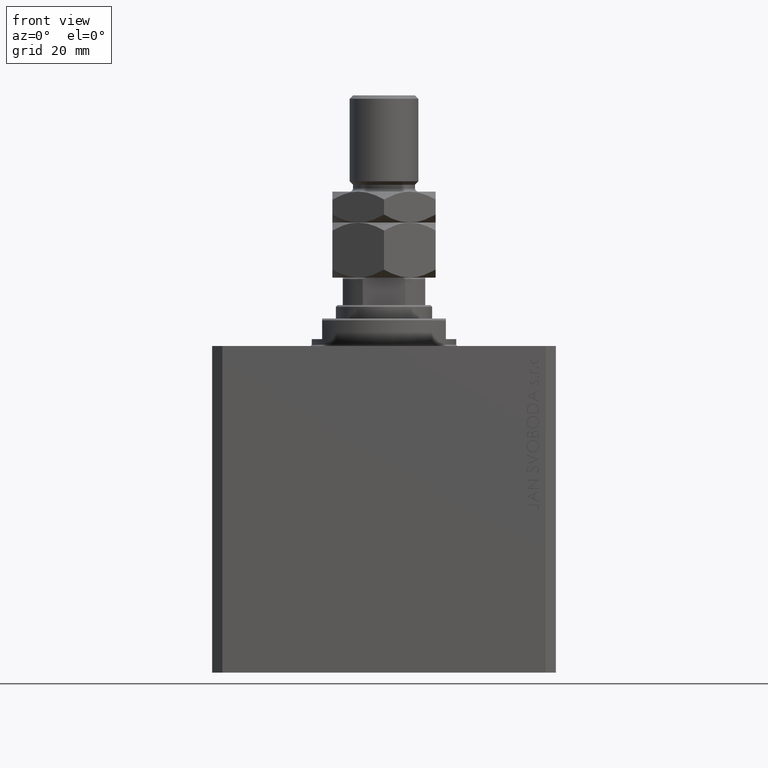
[diagram: clean part render]
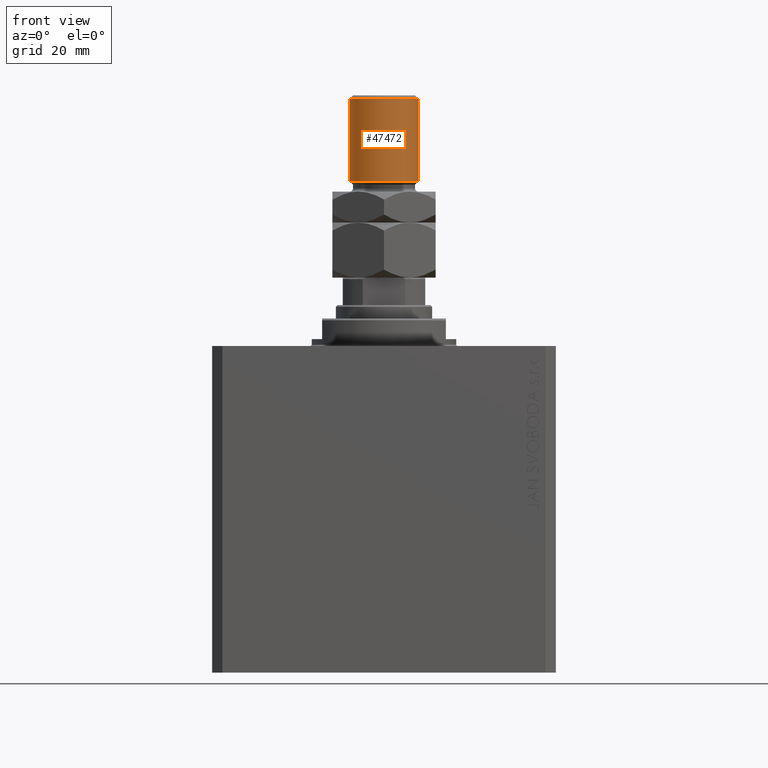
[diagram: same view with one face highlighted and labeled with its STEP entity id]
A machine part, front view. The second image highlights one B-rep face of the part: STEP entity #47472.
In plain terms, the highlighted cylindrical surface (edge-blend (fillet) strip) has radius 10 mm, axis along (-0, -0, -1).
Its self-contained STEP definition (entity closure, byte-faithful):
#1372 = DIRECTION ( 'NONE',  ( -0.000000000000000000, -0.000000000000000000, -1.000000000000000000 ) ) ;
#5314 = CYLINDRICAL_SURFACE ( 'NONE', #8164, 10.00000000000000000 ) ;
#5476 = ORIENTED_EDGE ( 'NONE', *, *, #26832, .T. ) ;
#8164 = AXIS2_PLACEMENT_3D ( 'NONE', #46537, #1372, #20381 ) ;
#9980 = LINE ( 'NONE', #14156, #13611 ) ;
#10219 = DIRECTION ( 'NONE',  ( -0.000000000000000000, -0.000000000000000000, -1.000000000000000000 ) ) ;
#10652 = CARTESIAN_POINT ( 'NONE',  ( 0.000000000000000000, 0.000000000000000000, 28.00000000000002487 ) ) ;
#11210 = CARTESIAN_POINT ( 'NONE',  ( 0.000000000000000000, 0.000000000000000000, 52.00000000000004974 ) ) ;
#11712 = VERTEX_POINT ( 'NONE', #40318 ) ;
#12011 = CIRCLE ( 'NONE', #46685, 10.00000000000000000 ) ;
#13611 = VECTOR ( 'NONE', #10219, 1000.000000000000000 ) ;
#14156 = CARTESIAN_POINT ( 'NONE',  ( -10.00000000000000000, 0.000000000000000000, 53.00000000000000711 ) ) ;
#15416 = AXIS2_PLACEMENT_3D ( 'NONE', #11210, #29727, #33904 ) ;
#16864 = CARTESIAN_POINT ( 'NONE',  ( -10.00000000000000000, 0.000000000000000000, 28.00000000000002487 ) ) ;
#20381 = DIRECTION ( 'NONE',  ( -1.000000000000000000, 0.000000000000000000, 0.000000000000000000 ) ) ;
#20660 = ORIENTED_EDGE ( 'NONE', *, *, #38155, .T. ) ;
#26832 = EDGE_CURVE ( 'NONE', #47959, #11712, #12011, .T. ) ;
#27054 = FACE_OUTER_BOUND ( 'NONE', #47820, .T. ) ;
#27409 = DIRECTION ( 'NONE',  ( -0.000000000000000000, -0.000000000000000000, -1.000000000000000000 ) ) ;
#28524 = ORIENTED_EDGE ( 'NONE', *, *, #46396, .T. ) ;
#29727 = DIRECTION ( 'NONE',  ( 0.000000000000000000, 0.000000000000000000, -1.000000000000000000 ) ) ;
#30434 = EDGE_CURVE ( 'NONE', #48320, #11712, #35530, .T. ) ;
#31253 = CARTESIAN_POINT ( 'NONE',  ( 10.00000000000000000, 1.224646799147353059E-15, 52.00000000000004974 ) ) ;
#31834 = CARTESIAN_POINT ( 'NONE',  ( 10.00000000000000000, 1.224646799147353059E-15, 53.00000000000000711 ) ) ;
#33352 = DIRECTION ( 'NONE',  ( -0.000000000000000000, -0.000000000000000000, 1.000000000000000000 ) ) ;
#33904 = DIRECTION ( 'NONE',  ( 1.000000000000000000, 0.000000000000000000, 0.000000000000000000 ) ) ;
#35530 = LINE ( 'NONE', #31834, #47478 ) ;
#37010 = VERTEX_POINT ( 'NONE', #44946 ) ;
#38155 = EDGE_CURVE ( 'NONE', #48320, #37010, #39075, .T. ) ;
#39075 = CIRCLE ( 'NONE', #15416, 10.00000000000000000 ) ;
#40318 = CARTESIAN_POINT ( 'NONE',  ( 10.00000000000000000, 1.224646799147353059E-15, 28.00000000000002487 ) ) ;
#44946 = CARTESIAN_POINT ( 'NONE',  ( -10.00000000000000000, 0.000000000000000000, 52.00000000000004974 ) ) ;
#45656 = ORIENTED_EDGE ( 'NONE', *, *, #30434, .F. ) ;
#46396 = EDGE_CURVE ( 'NONE', #37010, #47959, #9980, .T. ) ;
#46537 = CARTESIAN_POINT ( 'NONE',  ( 0.000000000000000000, 0.000000000000000000, 53.00000000000000711 ) ) ;
#46685 = AXIS2_PLACEMENT_3D ( 'NONE', #10652, #33352, #48417 ) ;
#47472 = ADVANCED_FACE ( 'NONE', ( #27054 ), #5314, .T. ) ;
#47478 = VECTOR ( 'NONE', #27409, 1000.000000000000000 ) ;
#47820 = EDGE_LOOP ( 'NONE', ( #45656, #20660, #28524, #5476 ) ) ;
#47959 = VERTEX_POINT ( 'NONE', #16864 ) ;
#48320 = VERTEX_POINT ( 'NONE', #31253 ) ;
#48417 = DIRECTION ( 'NONE',  ( 1.000000000000000000, 0.000000000000000000, 0.000000000000000000 ) ) ;